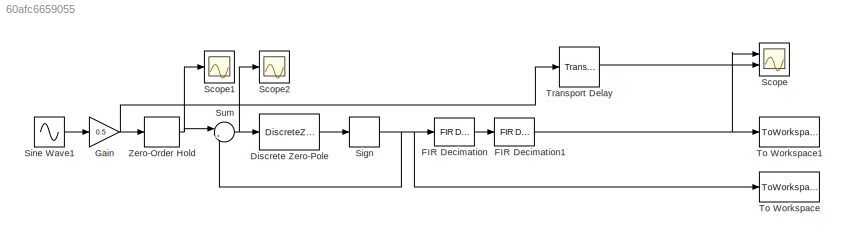
MODEL slx_60afc6659055
KIND model
CONFIG AbsTol = auto
CONFIG EnableMultiTasking = off
CONFIG FixedStep = 1/160000
CONFIG MaxStep = auto
CONFIG MinStep = auto
CONFIG RelTol = 1e-3
CONFIG SampleTimeConstraint = Unconstrained
CONFIG Solver = FixedStepAuto
CONFIG SolverName = FixedStepAuto
CONFIG StartTime = 0.0
CONFIG StopTime = 10
BLOCK [DiscreteZeroPole] Discrete Zero-Pole
  Gain = H.K
  Poles = H.P{1}
  SampleTime = -1
  Zeros = H.Z{1}
BLOCK [Reference] FIR Decimation  REF=dspmlti4/FIR
Decimation
  Ports = [1, 1]
  SourceBlock = dspmlti4/FIR\nDecimation
  SourceProductBaseCode = DS
  SourceProductName = DSP System Toolbox
  SourceType = FIR Decimation
  UserDataPersistent = on
BLOCK [Reference] FIR Decimation1  REF=dspmlti4/FIR
Decimation
  Ports = [1, 1]
  SourceBlock = dspmlti4/FIR\nDecimation
  SourceProductBaseCode = DS
  SourceProductName = DSP System Toolbox
  SourceType = FIR Decimation
  UserDataPersistent = on
BLOCK [Gain] Gain
  Gain = 0.5
  OutDataTypeStr = Inherit: Inherit via internal rule
  ParamDataTypeStr = Inherit: Inherit via internal rule
  SaturateOnIntegerOverflow = off
BLOCK [Scope] Scope
  NumInputPorts = 2
  Ports = [2]
  ScopeSpecificationString = Simulink.scopes.TimeScopeBlockCfg('CurrentConfiguration', extmgr.ConfigurationSet(extmgr.Configuration('Core','General UI',true),extmgr.Configuration('Core','Source UI',true),extmgr.Configuration('Sources','WiredSimulink',true),extmgr.Configuration('Visuals','Time Domain',true,'SerializedDisplays',{struct('MinYLimReal','-0.625','MaxYLimReal','0.625','YLabelReal','','MinYLimMag','0.00000','MaxYLimM...<+1442ch>
BLOCK [Scope] Scope1
  NumInputPorts = 1
  Ports = [1]
  ScopeSpecificationString = Simulink.scopes.TimeScopeBlockCfg('CurrentConfiguration', extmgr.ConfigurationSet(extmgr.Configuration('Core','General UI',true),extmgr.Configuration('Core','Source UI',true),extmgr.Configuration('Sources','WiredSimulink',true,'DataLoggingVariableName','ScopeData1'),extmgr.Configuration('Visuals','Time Domain',true,'SerializedDisplays',{struct('MinYLimReal','-1.25','MaxYLimReal','1.25','YLabelReal...<+1429ch>
BLOCK [Scope] Scope2
  NumInputPorts = 1
  Ports = [1]
  ScopeSpecificationString = Simulink.scopes.TimeScopeBlockCfg('CurrentConfiguration', extmgr.ConfigurationSet(extmgr.Configuration('Core','General UI',true),extmgr.Configuration('Core','Source UI',true),extmgr.Configuration('Sources','WiredSimulink',true,'DataLoggingVariableName','ScopeData2'),extmgr.Configuration('Visuals','Time Domain',true,'SerializedDisplays',{struct('MinYLimReal','-2.1875','MaxYLimReal','2.1875','YLabel...<+1454ch>
BLOCK [Signum] Sign
BLOCK [Sin] Sine Wave1
  Frequency = 2*pi*100
  Ports = [0, 1]
  SampleTime = 0
BLOCK [Sum] Sum
  IconShape = round
  InputSameDT = off
  Inputs = |+-
  OutDataTypeStr = Inherit: Inherit via internal rule
  Ports = [2, 1]
  SaturateOnIntegerOverflow = off
BLOCK [ToWorkspace] To Workspace
  FixptAsFi = on
  MaxDataPoints = inf
  Ports = [1]
  SampleTime = -1
  Save2DSignal = 3-D array (concatenate along third dimension)
  SaveFormat = Timeseries
  VariableName = y1
BLOCK [ToWorkspace] To Workspace1
  FixptAsFi = on
  MaxDataPoints = inf
  Ports = [1]
  SampleTime = -1
  Save2DSignal = 3-D array (concatenate along third dimension)
  SaveFormat = Timeseries
  VariableName = y2
BLOCK [TransportDelay] Transport Delay
  DelayTime = 126/160000
  Ports = [1, 1]
BLOCK [ZeroOrderHold] Zero-Order Hold
  SampleTime = 1/160000
LINE Discrete Zero-Pole:1 -> Sign:1
NET FIR Decimation1:1 -> Scope:1, To Workspace1:1
LINE FIR Decimation:1 -> FIR Decimation1:1
NET Gain:1 -> Transport Delay:1, Zero-Order Hold:1
NET Sign:1 -> FIR Decimation:1, Sum:2, To Workspace:1
LINE Sine Wave1:1 -> Gain:1
NET Sum:1 -> Discrete Zero-Pole:1, Scope2:1
LINE Transport Delay:1 -> Scope:2
NET Zero-Order Hold:1 -> Scope1:1, Sum:1
note: NET lines group one-source signal fan-out (src -> all destinations, sorted); 1:1 wires keep LINE
